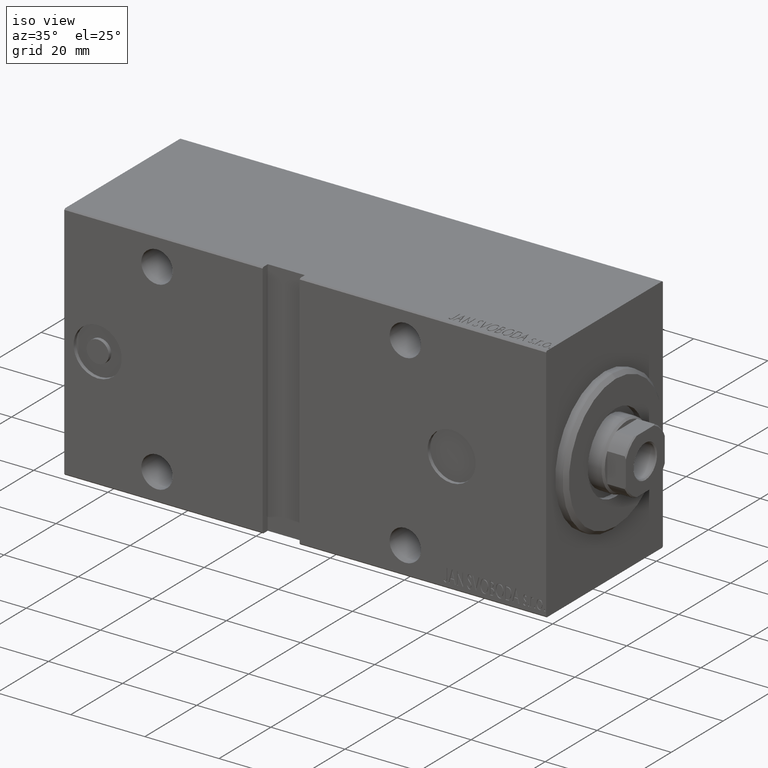
[diagram: clean part render]
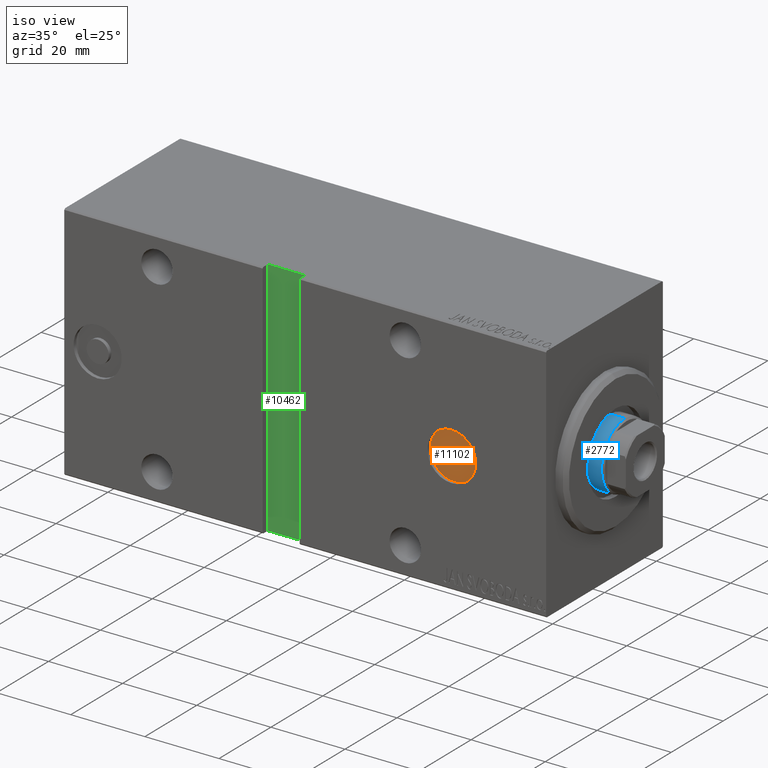
[diagram: same view with three faces highlighted in distinct colors, each labeled with its STEP entity id]
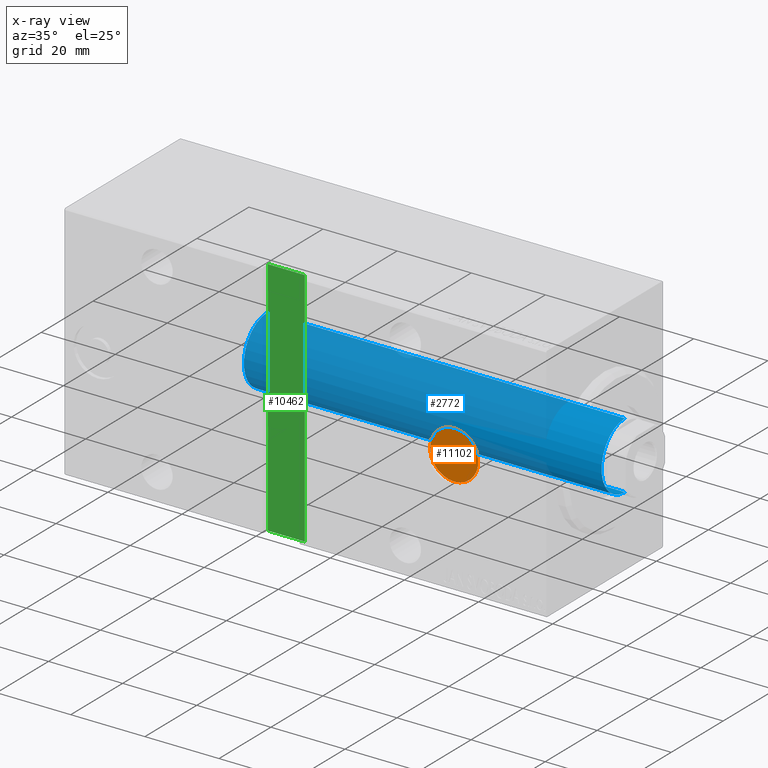
[diagram: x-ray of the same camera — body ghosted, the three highlighted faces saturated]
A machine part, iso view with three faces highlighted in distinct colors.
The next image is the same camera in x-ray (body ghosted, the three faces saturated) — at least one of them is partly hidden behind the body in this view.
Their STEP definitions:

[orange] entity #11102 — the highlighted planar face has unit normal (-0, -1, 0).
#4302 = PLANE ( 'NONE',  #30040 ) ;
#5179 = CARTESIAN_POINT ( 'NONE',  ( 5.546678239835239257E-31, 21.50000000000000000, 2.624514330359738847E-15 ) ) ;
#5263 = VERTEX_POINT ( 'NONE', #20051 ) ;
#5851 = CARTESIAN_POINT ( 'NONE',  ( 25.50000000000000000, 21.50000000000000000, 2.275763105547195299E-15 ) ) ;
#6070 = DIRECTION ( 'NONE',  ( 2.465190328815661892E-32, 1.000000000000000000, 1.222522683423780677E-16 ) ) ;
#6985 = DIRECTION ( 'NONE',  ( 2.465190328815661892E-32, 1.000000000000000000, 1.222522683423780677E-16 ) ) ;
#7209 = VERTEX_POINT ( 'NONE', #17427 ) ;
#7463 = EDGE_LOOP ( 'NONE', ( #37353, #41533 ) ) ;
#8751 = EDGE_CURVE ( 'NONE', #5263, #7209, #25937, .T. ) ;
#11102 = ADVANCED_FACE ( 'NONE', ( #18188 ), #4302, .T. ) ;
#15823 = DIRECTION ( 'NONE',  ( 0.000000000000000000, 0.000000000000000000, 1.000000000000000000 ) ) ;
#17427 = CARTESIAN_POINT ( 'NONE',  ( 25.50000000000000000, 21.50000000000000000, -6.499999999999994671 ) ) ;
#18188 = FACE_OUTER_BOUND ( 'NONE', #7463, .T. ) ;
#20051 = CARTESIAN_POINT ( 'NONE',  ( 25.50000000000000000, 21.50000000000000000, 6.500000000000000000 ) ) ;
#22717 = AXIS2_PLACEMENT_3D ( 'NONE', #5851, #6070, #15823 ) ;
#23810 = EDGE_CURVE ( 'NONE', #7209, #5263, #30321, .T. ) ;
#24699 = DIRECTION ( 'NONE',  ( 0.000000000000000000, -1.222522683423780677E-16, 1.000000000000000000 ) ) ;
#25937 = CIRCLE ( 'NONE', #32074, 6.499999999999997335 ) ;
#29769 = DIRECTION ( 'NONE',  ( 0.000000000000000000, 0.000000000000000000, 1.000000000000000000 ) ) ;
#30040 = AXIS2_PLACEMENT_3D ( 'NONE', #5179, #31422, #24699 ) ;
#30321 = CIRCLE ( 'NONE', #22717, 6.499999999999997335 ) ;
#30608 = CARTESIAN_POINT ( 'NONE',  ( 25.50000000000000000, 21.50000000000000000, 2.275763105547195299E-15 ) ) ;
#31422 = DIRECTION ( 'NONE',  ( 2.465190328815661892E-32, 1.000000000000000000, 1.222522683423780677E-16 ) ) ;
#32074 = AXIS2_PLACEMENT_3D ( 'NONE', #30608, #6985, #29769 ) ;
#37353 = ORIENTED_EDGE ( 'NONE', *, *, #8751, .T. ) ;
#41533 = ORIENTED_EDGE ( 'NONE', *, *, #23810, .T. ) ;

[blue] entity #2772 — the highlighted cylindrical surface (partial cylindrical patch) has radius 9 mm, axis along (-1, -0, 0).
#807 = VERTEX_POINT ( 'NONE', #28881 ) ;
#2512 = FACE_OUTER_BOUND ( 'NONE', #21361, .T. ) ;
#2772 = ADVANCED_FACE ( 'NONE', ( #2512 ), #38744, .T. ) ;
#2870 = CARTESIAN_POINT ( 'NONE',  ( -9.000000000000000000, 0.000000000000000000, 130.0000000000000000 ) ) ;
#3507 = CARTESIAN_POINT ( 'NONE',  ( -9.000000000000000000, 0.000000000000000000, 129.5000000000000568 ) ) ;
#5133 = CARTESIAN_POINT ( 'NONE',  ( 0.000000000000000000, 0.000000000000000000, 130.0000000000000000 ) ) ;
#6479 = CARTESIAN_POINT ( 'NONE',  ( 0.000000000000000000, 0.000000000000000000, 129.5000000000000568 ) ) ;
#6522 = CIRCLE ( 'NONE', #7876, 9.000000000000000000 ) ;
#7876 = AXIS2_PLACEMENT_3D ( 'NONE', #6479, #29471, #16453 ) ;
#8341 = CARTESIAN_POINT ( 'NONE',  ( 0.000000000000000000, 0.000000000000000000, 33.00000000000000000 ) ) ;
#9180 = AXIS2_PLACEMENT_3D ( 'NONE', #5133, #22057, #22469 ) ;
#9336 = ORIENTED_EDGE ( 'NONE', *, *, #41260, .T. ) ;
#9642 = VECTOR ( 'NONE', #32811, 1000.000000000000000 ) ;
#10888 = VERTEX_POINT ( 'NONE', #12789 ) ;
#12789 = CARTESIAN_POINT ( 'NONE',  ( 9.000000000000000000, 1.102182119232617517E-15, 129.5000000000000568 ) ) ;
#13545 = VECTOR ( 'NONE', #24183, 1000.000000000000000 ) ;
#15102 = VERTEX_POINT ( 'NONE', #3507 ) ;
#15594 = EDGE_CURVE ( 'NONE', #10888, #807, #21142, .T. ) ;
#16453 = DIRECTION ( 'NONE',  ( 1.000000000000000000, 0.000000000000000000, 0.000000000000000000 ) ) ;
#18474 = CIRCLE ( 'NONE', #29555, 9.000000000000000000 ) ;
#18480 = VERTEX_POINT ( 'NONE', #21733 ) ;
#21142 = LINE ( 'NONE', #30905, #13545 ) ;
#21361 = EDGE_LOOP ( 'NONE', ( #27018, #37801, #39763, #9336 ) ) ;
#21569 = DIRECTION ( 'NONE',  ( 1.000000000000000000, 0.000000000000000000, 0.000000000000000000 ) ) ;
#21733 = CARTESIAN_POINT ( 'NONE',  ( -9.000000000000000000, 0.000000000000000000, 33.00000000000000000 ) ) ;
#22057 = DIRECTION ( 'NONE',  ( -0.000000000000000000, -0.000000000000000000, -1.000000000000000000 ) ) ;
#22469 = DIRECTION ( 'NONE',  ( -1.000000000000000000, 0.000000000000000000, 0.000000000000000000 ) ) ;
#24183 = DIRECTION ( 'NONE',  ( -0.000000000000000000, -0.000000000000000000, -1.000000000000000000 ) ) ;
#27018 = ORIENTED_EDGE ( 'NONE', *, *, #15594, .F. ) ;
#28881 = CARTESIAN_POINT ( 'NONE',  ( 9.000000000000000000, 1.102182119232617517E-15, 33.00000000000000000 ) ) ;
#29471 = DIRECTION ( 'NONE',  ( 0.000000000000000000, 0.000000000000000000, -1.000000000000000000 ) ) ;
#29555 = AXIS2_PLACEMENT_3D ( 'NONE', #8341, #31769, #21569 ) ;
#30905 = CARTESIAN_POINT ( 'NONE',  ( 9.000000000000000000, 1.102182119232617517E-15, 130.0000000000000000 ) ) ;
#31769 = DIRECTION ( 'NONE',  ( 0.000000000000000000, 0.000000000000000000, 1.000000000000000000 ) ) ;
#31814 = EDGE_CURVE ( 'NONE', #15102, #18480, #35641, .T. ) ;
#32811 = DIRECTION ( 'NONE',  ( -0.000000000000000000, -0.000000000000000000, -1.000000000000000000 ) ) ;
#34333 = EDGE_CURVE ( 'NONE', #10888, #15102, #6522, .T. ) ;
#35641 = LINE ( 'NONE', #2870, #9642 ) ;
#37801 = ORIENTED_EDGE ( 'NONE', *, *, #34333, .T. ) ;
#38744 = CYLINDRICAL_SURFACE ( 'NONE', #9180, 9.000000000000000000 ) ;
#39763 = ORIENTED_EDGE ( 'NONE', *, *, #31814, .T. ) ;
#41260 = EDGE_CURVE ( 'NONE', #18480, #807, #18474, .T. ) ;

[green] entity #10462 — the highlighted planar face has unit normal (-0, 1, -0).
#1033 = ORIENTED_EDGE ( 'NONE', *, *, #7216, .T. ) ;
#1448 = CARTESIAN_POINT ( 'NONE',  ( 66.50000000000001421, 20.49999999999999645, 32.50000000000000711 ) ) ;
#2434 = CARTESIAN_POINT ( 'NONE',  ( 76.50000000000000000, 20.50000000000000355, -32.50000000000009948 ) ) ;
#3569 = VERTEX_POINT ( 'NONE', #20549 ) ;
#3895 = EDGE_LOOP ( 'NONE', ( #6267, #11049, #1033, #9747 ) ) ;
#5707 = CARTESIAN_POINT ( 'NONE',  ( 76.50000000000000000, 20.50000000000000355, -32.50000000000009948 ) ) ;
#5854 = CARTESIAN_POINT ( 'NONE',  ( 76.50000000000000000, 20.49999999999999645, 32.50000000000000711 ) ) ;
#6267 = ORIENTED_EDGE ( 'NONE', *, *, #24677, .T. ) ;
#6492 = AXIS2_PLACEMENT_3D ( 'NONE', #18078, #14819, #24812 ) ;
#6620 = VECTOR ( 'NONE', #21264, 1000.000000000000000 ) ;
#7216 = EDGE_CURVE ( 'NONE', #27392, #3569, #41529, .T. ) ;
#9747 = ORIENTED_EDGE ( 'NONE', *, *, #20581, .T. ) ;
#9757 = LINE ( 'NONE', #42734, #24134 ) ;
#10462 = ADVANCED_FACE ( 'NONE', ( #17863 ), #31099, .F. ) ;
#11049 = ORIENTED_EDGE ( 'NONE', *, *, #16865, .T. ) ;
#11798 = DIRECTION ( 'NONE',  ( -0.000000000000000000, 1.067522139062648576E-16, -1.000000000000000000 ) ) ;
#14819 = DIRECTION ( 'NONE',  ( 0.000000000000000000, -1.000000000000000000, -1.067522139062648576E-16 ) ) ;
#15501 = VECTOR ( 'NONE', #11798, 1000.000000000000000 ) ;
#16865 = EDGE_CURVE ( 'NONE', #33990, #27392, #31459, .T. ) ;
#17786 = VECTOR ( 'NONE', #21757, 1000.000000000000000 ) ;
#17863 = FACE_OUTER_BOUND ( 'NONE', #3895, .T. ) ;
#18078 = CARTESIAN_POINT ( 'NONE',  ( 0.000000000000000000, 20.49999999999999645, 2.149601398203423530E-15 ) ) ;
#20549 = CARTESIAN_POINT ( 'NONE',  ( 76.50000000000000000, 20.50000000000000000, -32.50000000000000000 ) ) ;
#20581 = EDGE_CURVE ( 'NONE', #3569, #22367, #32151, .T. ) ;
#21264 = DIRECTION ( 'NONE',  ( 1.000000000000000000, -0.000000000000000000, -0.000000000000000000 ) ) ;
#21757 = DIRECTION ( 'NONE',  ( -1.000000000000000000, 0.000000000000000000, 0.000000000000000000 ) ) ;
#22367 = VERTEX_POINT ( 'NONE', #28009 ) ;
#24134 = VECTOR ( 'NONE', #38468, 1000.000000000000000 ) ;
#24677 = EDGE_CURVE ( 'NONE', #22367, #33990, #9757, .T. ) ;
#24812 = DIRECTION ( 'NONE',  ( 0.000000000000000000, 1.067522139062648576E-16, -1.000000000000000000 ) ) ;
#27392 = VERTEX_POINT ( 'NONE', #5854 ) ;
#28009 = CARTESIAN_POINT ( 'NONE',  ( 66.50000000000001421, 20.50000000000000355, -32.50000000000009948 ) ) ;
#31099 = PLANE ( 'NONE',  #6492 ) ;
#31242 = CARTESIAN_POINT ( 'NONE',  ( 76.50000000000000000, 20.49999999999999645, 32.50000000000000711 ) ) ;
#31459 = LINE ( 'NONE', #31242, #6620 ) ;
#32151 = LINE ( 'NONE', #2434, #17786 ) ;
#33990 = VERTEX_POINT ( 'NONE', #1448 ) ;
#38468 = DIRECTION ( 'NONE',  ( 0.000000000000000000, -1.067522139062648576E-16, 1.000000000000000000 ) ) ;
#41529 = LINE ( 'NONE', #5707, #15501 ) ;
#42734 = CARTESIAN_POINT ( 'NONE',  ( 66.50000000000001421, 20.50000000000000355, -32.50000000000009948 ) ) ;